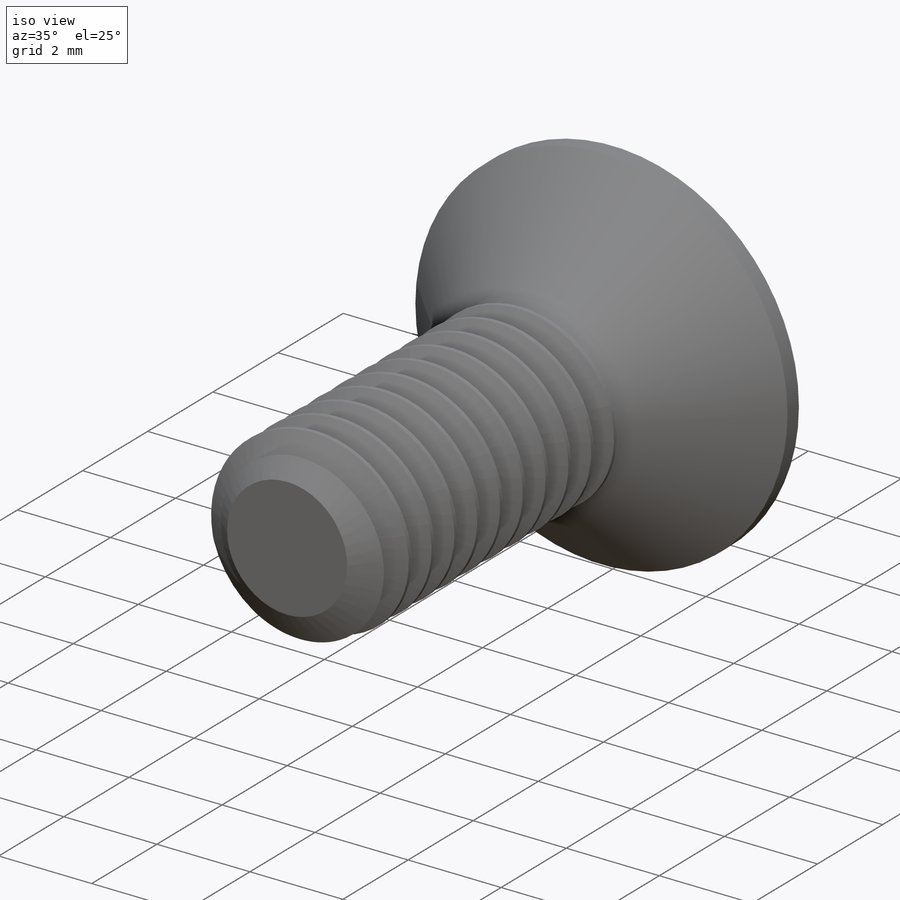
[diagram: iso view]
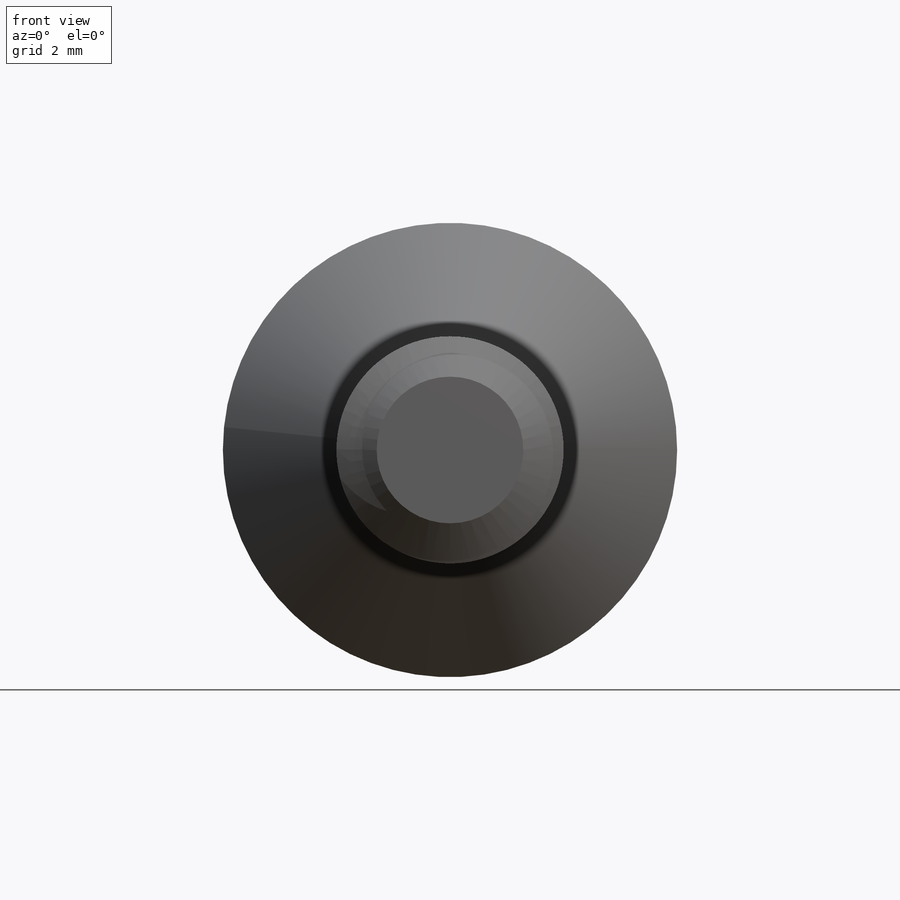
[diagram: front view]
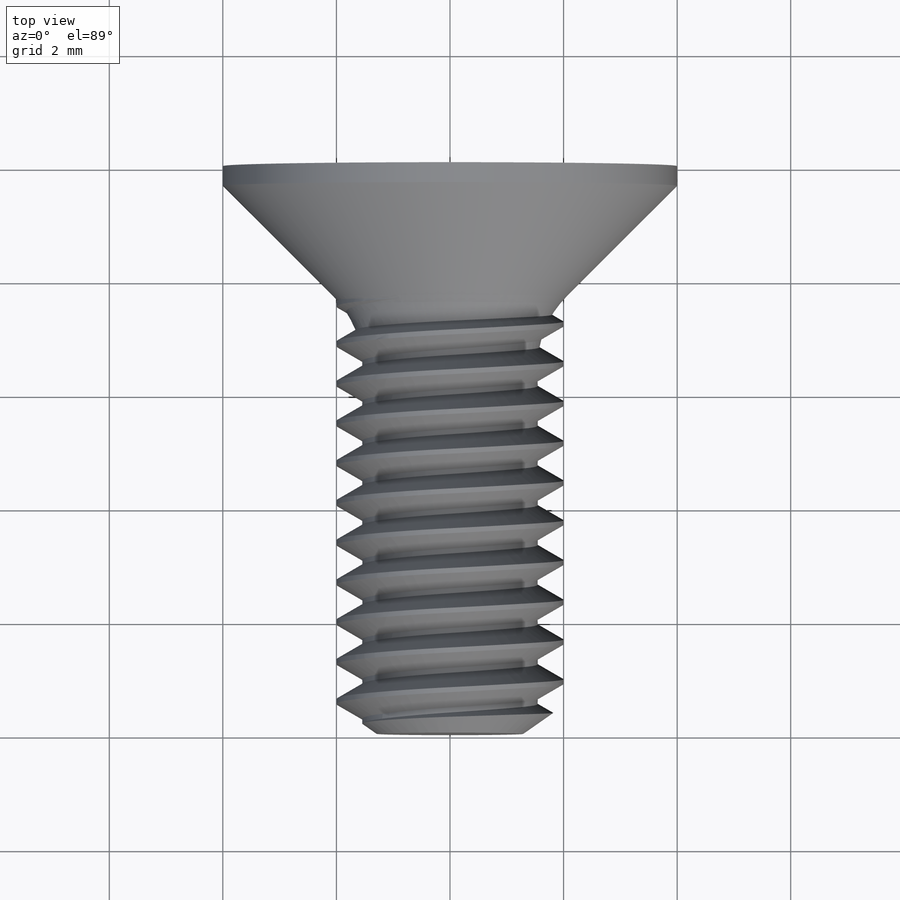
[diagram: top view]
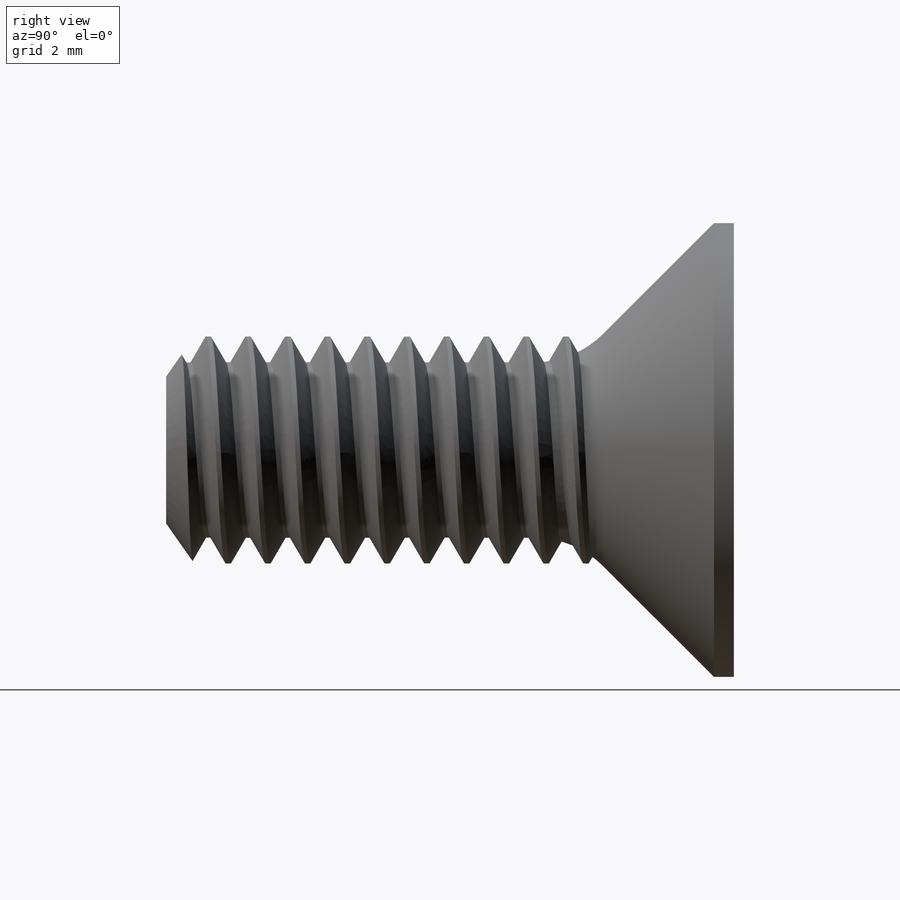
[diagram: right view]
SOLIDWORKS PART (.sldprt)
format: sldprt  version: not decoded by parser v0  size: 555,520 bytes
history: native  units: mm
features: sketch x11, extrude x2, cut_revolve x2, revolve x2, cut_extrude x2, material x1, helix x1, sweep x1 (+11 scaffold rows collapsed)
feature tree (33):
  scaffold x11  (default folders/planes/origin — collapsed)
  material  "Material <not specified>"
  sketch  "Sketch1"  dims[OD=4.0mm]
  extrude  "Extrude1"  Depth=10mm screw length=10mm
  sketch  "Sketch2"
  helix  "Helix/Spiral1"  Pitch=10.7mm pitch=0.7mm
  sketch  "Sketch3"  dims[c1.D1=0.0875mm c1.D2=0.35mm c1.D3=~1.069256mm c2.D3=60.0deg]
  sweep  "Cut-Sweep1"
  sketch  "Sketch4"  dims[c1.D1=~3.187432mm c2.D1=55.0deg c2.D2=0.254mm]
  cut_revolve  "Cut-Revolve1"  Angle=360deg
  sketch  "Sketch5"  dims[c1.Thread min=18.0mm c1.D2=0.635mm c1.D3=0.3302mm c1.D1=0.3302mm c2.D2=0.05mm c2.D3=1.0541mm c3.D3=30.0deg]
  revolve  "partially thread"  Angle=360deg
  sketch  "Sketch6"  dims[head dia=8.0mm]
  extrude  "Extrude2"  Depth=2.3mm head depth=2.3mm
  sketch  "Sketch10"  dims[c1.D1=18.8mm c2.D1=45.0deg c3.D1=~9.872629mm c4.D1=45.0deg c4.D2=0.05mm]
  cut_revolve  "Cut-Revolve2"  Angle=360deg
  sketch  "Sketch11"
  revolve  "Revolve1"  Angle=360deg
  sketch  "Sketch7"  dims[hex dia=2.5mm]
  cut_extrude  "Cut-Extrude1"  Depth=1.875mm
  sketch  "Sketch8"
  cut_extrude  "Cut-Extrude2"  [1 undecoded]
  sketch  "Sketch9"  dims[D1=3.85mm]
decode coverage: 16 of 21 modeling features carry decoded parameters
note: ~ marks probable driven/reference dimensions
note: 1 parameter value undecoded
note: suppression state not decoded; provenance and decode notes live in map.json
